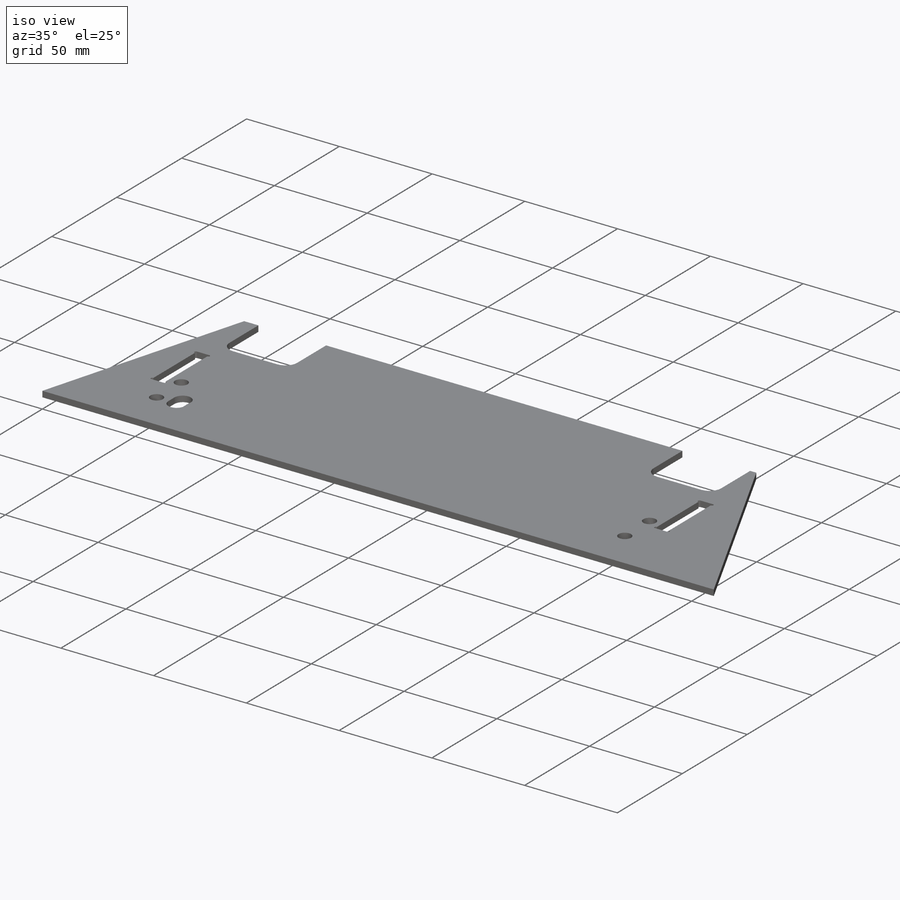
[diagram: iso view]
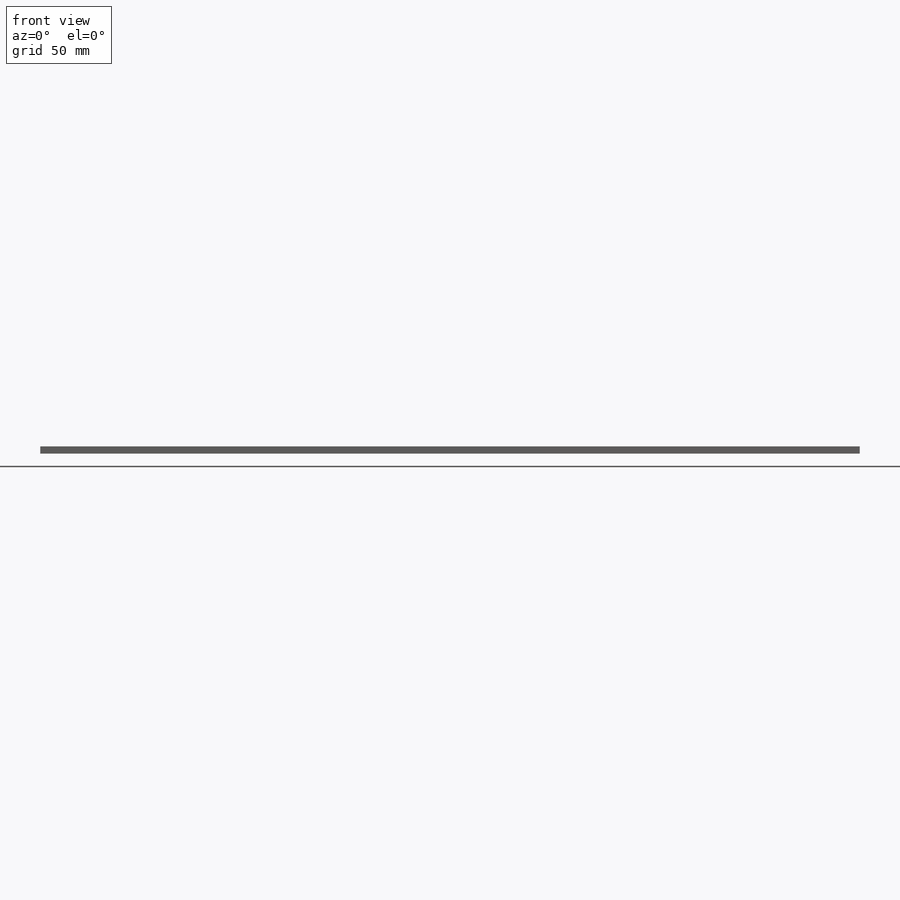
[diagram: front view]
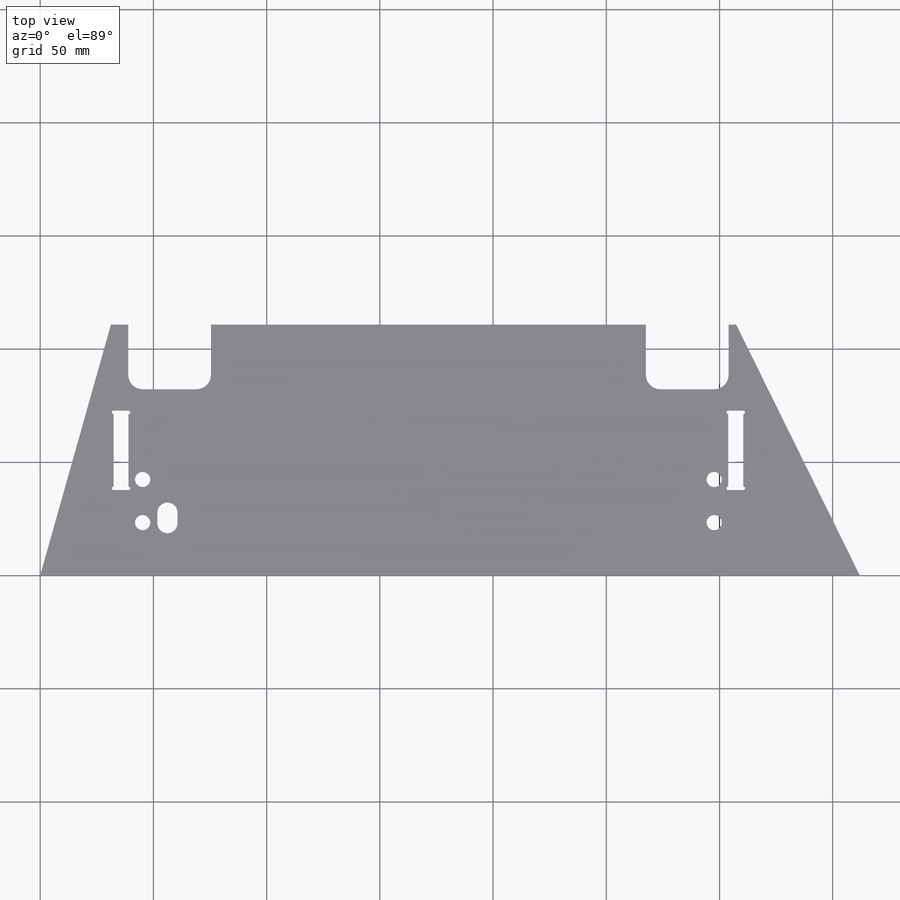
[diagram: top view]
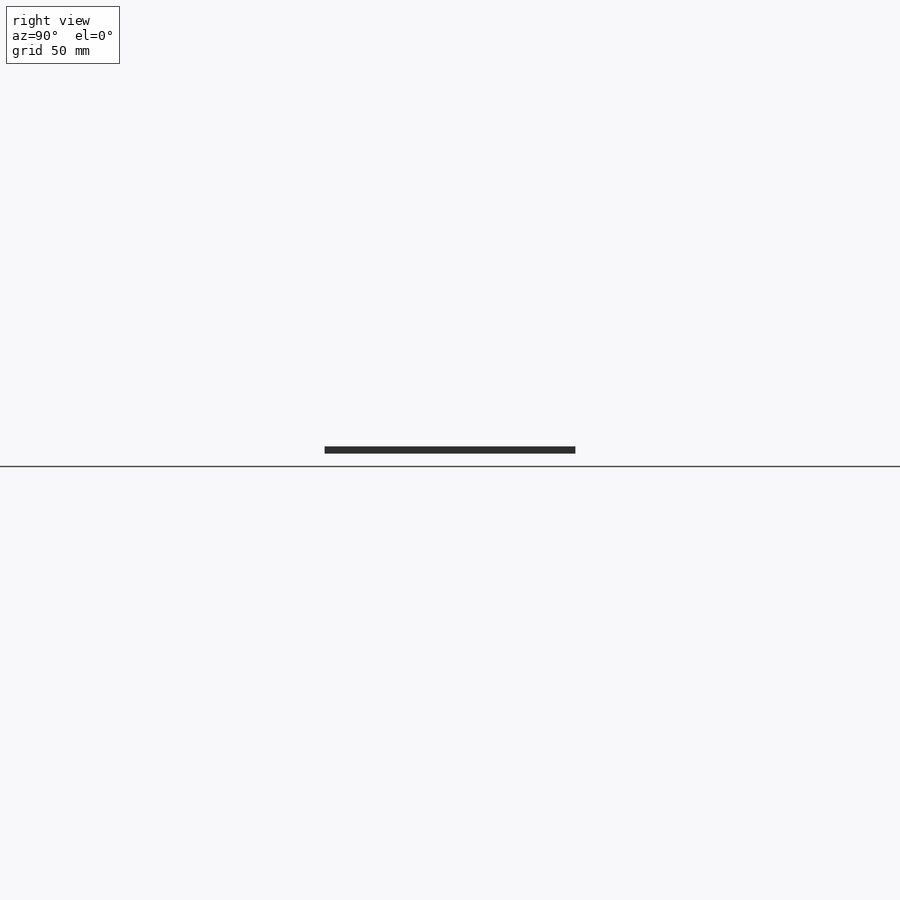
[diagram: right view]
SOLIDWORKS PART (.sldprt)
format: sldprt  version: not decoded by parser v0  size: 364,032 bytes
history: native  units: mm
features: sketch x9, cut_extrude x6, material x1, extrude x1, fillet x1, hole x1 (+13 scaffold rows collapsed)
feature tree (32):
  scaffold x13  (default folders/planes/origin — collapsed)
  material  "Material <not specified>"
  sketch  "Sketch1"  dims[c1.D1=~51.933309mm c1.D2=~98.893253mm c2.D1=361.95mm c2.D2=110.744mm]
  extrude  "Boss-Extrude1"  Depth=3.175mm
  sketch  "Sketch2"  dims[c1.D1=~29.038079mm c2.D1=~136.883272deg c3.D1=29.21mm c3.D2=50.8mm c4.D1=~107.242176mm c5.D1=15.75deg c5.D2=103.1875mm c6.D2=26.25deg]
  cut_extrude  "Cut-Extrude1"  [1 undecoded]
  sketch  "Sketch3"  dims[D1=1.5875mm D2=1.5875mm D3=1.5875mm D4=1.5875mm D5=28.575mm]
  cut_extrude  "Cut-Extrude2"  [1 undecoded]
  fillet  "Fillet1"  Radius=6.35mm
  sketch  "Sketch4"  dims[c1.D1=7.9375mm c1.D2=7.9375mm c2.D1=~13.945688mm c2.D3=12.7mm c2.D4=12.7mm]
  cut_extrude  "Cut-Extrude3"  [1 undecoded]
  sketch  "Sketch5"  dims[c1.D1=~20.396423mm c1.D2=9.525mm c1.D3=4.445mm c2.D1=55.5625mm c2.D3=24.13mm c2.D4=4.7625mm c2.D5=~29.834638mm c3.D1=25.4mm c3.D2=56.1975mm]
  cut_extrude  "Cut-Extrude4"  [1 undecoded]
  hole  "1/4 Clearance Hole1"  Diameter=6.7564mm Depth=3.175mm
  sketch  "Sketch7"
  sketch  "Sketch6"  dims[hole-wizard template sketch: 60 standard entries collapsed; hole parameters kept: c18.Thru Hole Depth=3.175mm]
  sketch  "Sketch8"  dims[c1.D1=~34.863637mm c1.D2=6.35mm c2.D1=~34.863637mm c2.D2=6.35mm c3.D1=0.127mm]
  cut_extrude  "Cut-Extrude5"  [1 undecoded]
  sketch  "Sketch9"  dims[D1=1.5875mm]
  cut_extrude  "Cut-Extrude6"  [1 undecoded]
decode coverage: 11 of 18 modeling features carry decoded parameters
note: ~ marks probable driven/reference dimensions
note: 6 parameter values undecoded
summary: no parameter record found for 6 features
note: suppression state not decoded; provenance and decode notes live in map.json
